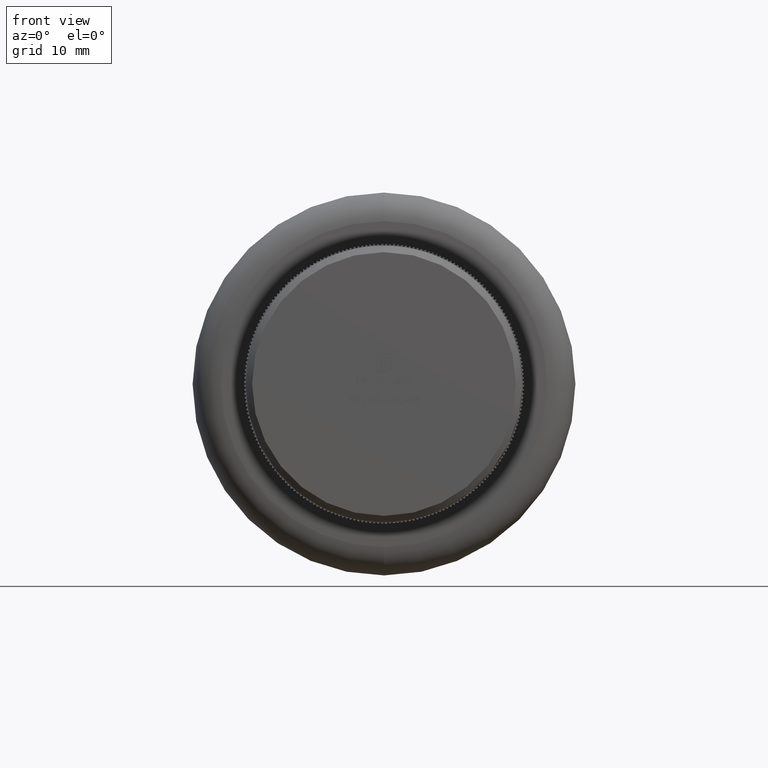
[diagram: clean part render]
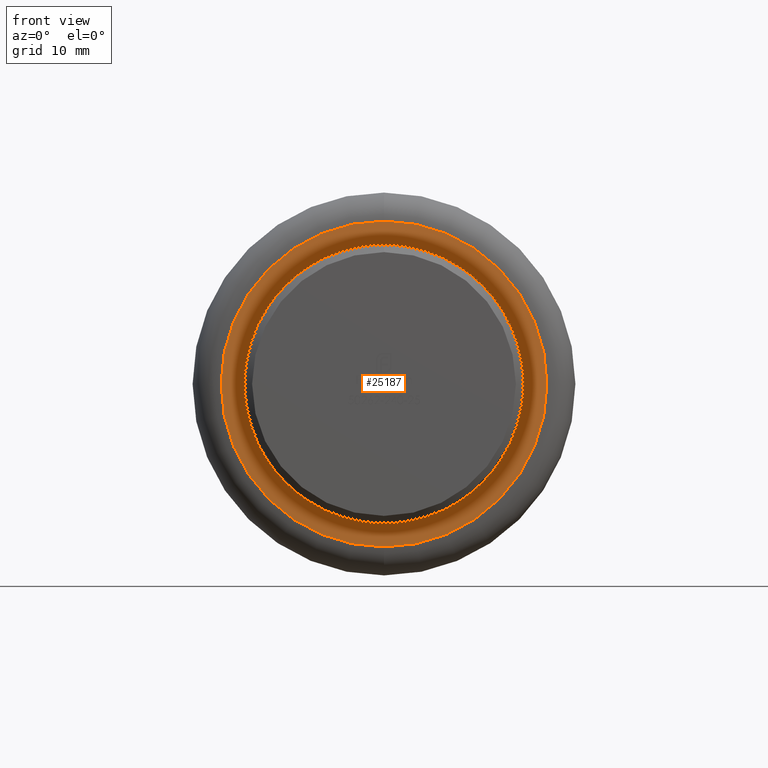
[diagram: same view with one face highlighted and labeled with its STEP entity id]
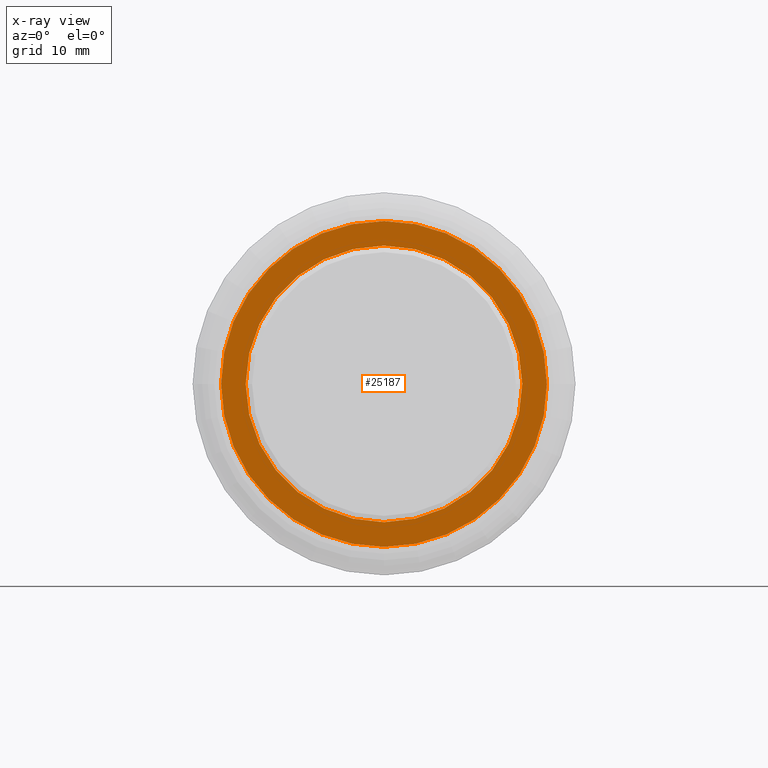
[diagram: x-ray of the same camera — body ghosted, the highlighted face saturated]
A machine part, front view. The second image highlights one B-rep face of the part: STEP entity #25187.
The next image is the same camera in x-ray: the body ghosted, the highlighted face saturated — about 0% of this face is hidden behind the body in this view.
In plain terms, the highlighted planar face has unit normal (0, -1, -0).
Its self-contained STEP definition (entity closure, byte-faithful):
#1648 = DIRECTION ( 'NONE',  ( 0.000000000000000000, -1.000000000000000000, 0.000000000000000000 ) ) ;
#4102 = AXIS2_PLACEMENT_3D ( 'NONE', #4243, #1648, #4631 ) ;
#4243 = CARTESIAN_POINT ( 'NONE',  ( 0.000000000000000000, 0.000000000000000000, 0.000000000000000000 ) ) ;
#4272 = CIRCLE ( 'NONE', #38283, 25.50000000000000000 ) ;
#4631 = DIRECTION ( 'NONE',  ( 0.000000000000000000, 0.000000000000000000, -1.000000000000000000 ) ) ;
#5046 = EDGE_CURVE ( 'NONE', #10919, #38102, #5146, .T. ) ;
#5146 = CIRCLE ( 'NONE', #8353, 25.50000000000000000 ) ;
#8353 = AXIS2_PLACEMENT_3D ( 'NONE', #36671, #12668, #33564 ) ;
#8680 = CARTESIAN_POINT ( 'NONE',  ( 0.000000000000000000, 0.000000000000000000, 21.65000000000000213 ) ) ;
#9742 = EDGE_CURVE ( 'NONE', #38102, #10919, #4272, .T. ) ;
#9939 = CARTESIAN_POINT ( 'NONE',  ( 0.000000000000000000, 0.000000000000000000, -25.50000000000000000 ) ) ;
#10919 = VERTEX_POINT ( 'NONE', #9939 ) ;
#12668 = DIRECTION ( 'NONE',  ( -0.000000000000000000, -1.000000000000000000, -0.000000000000000000 ) ) ;
#14438 = ORIENTED_EDGE ( 'NONE', *, *, #34758, .F. ) ;
#14979 = CARTESIAN_POINT ( 'NONE',  ( 25.50000000000000000, 0.000000000000000000, 0.000000000000000000 ) ) ;
#16271 = CARTESIAN_POINT ( 'NONE',  ( 3.122849337825750617E-15, 0.000000000000000000, 25.50000000000000000 ) ) ;
#16811 = ORIENTED_EDGE ( 'NONE', *, *, #35236, .F. ) ;
#16903 = CIRCLE ( 'NONE', #4102, 21.65000000000000213 ) ;
#17806 = EDGE_LOOP ( 'NONE', ( #16811, #14438 ) ) ;
#17878 = ORIENTED_EDGE ( 'NONE', *, *, #5046, .T. ) ;
#18232 = PLANE ( 'NONE',  #36876 ) ;
#21064 = DIRECTION ( 'NONE',  ( 0.000000000000000000, 0.000000000000000000, -1.000000000000000000 ) ) ;
#21203 = DIRECTION ( 'NONE',  ( 0.000000000000000000, 0.000000000000000000, -1.000000000000000000 ) ) ;
#23109 = FACE_BOUND ( 'NONE', #17806, .T. ) ;
#24978 = FACE_OUTER_BOUND ( 'NONE', #29440, .T. ) ;
#25187 = ADVANCED_FACE ( 'NONE', ( #23109, #24978 ), #18232, .T. ) ;
#25408 = CARTESIAN_POINT ( 'NONE',  ( 0.000000000000000000, 0.000000000000000000, 0.000000000000000000 ) ) ;
#26181 = AXIS2_PLACEMENT_3D ( 'NONE', #25408, #31514, #28920 ) ;
#27056 = DIRECTION ( 'NONE',  ( 0.000000000000000000, -1.000000000000000000, -0.000000000000000000 ) ) ;
#28920 = DIRECTION ( 'NONE',  ( 0.000000000000000000, 0.000000000000000000, -1.000000000000000000 ) ) ;
#29440 = EDGE_LOOP ( 'NONE', ( #17878, #36373 ) ) ;
#29884 = CARTESIAN_POINT ( 'NONE',  ( 0.000000000000000000, 0.000000000000000000, 0.000000000000000000 ) ) ;
#31514 = DIRECTION ( 'NONE',  ( 0.000000000000000000, -1.000000000000000000, 0.000000000000000000 ) ) ;
#32878 = DIRECTION ( 'NONE',  ( -0.000000000000000000, -1.000000000000000000, -0.000000000000000000 ) ) ;
#33564 = DIRECTION ( 'NONE',  ( 0.000000000000000000, 0.000000000000000000, -1.000000000000000000 ) ) ;
#34758 = EDGE_CURVE ( 'NONE', #37322, #37909, #16903, .T. ) ;
#35187 = CARTESIAN_POINT ( 'NONE',  ( 2.651360320154019665E-15, 0.000000000000000000, -21.65000000000000213 ) ) ;
#35236 = EDGE_CURVE ( 'NONE', #37909, #37322, #37087, .T. ) ;
#36373 = ORIENTED_EDGE ( 'NONE', *, *, #9742, .T. ) ;
#36671 = CARTESIAN_POINT ( 'NONE',  ( 0.000000000000000000, 0.000000000000000000, 0.000000000000000000 ) ) ;
#36876 = AXIS2_PLACEMENT_3D ( 'NONE', #14979, #27056, #21203 ) ;
#37087 = CIRCLE ( 'NONE', #26181, 21.65000000000000213 ) ;
#37322 = VERTEX_POINT ( 'NONE', #35187 ) ;
#37909 = VERTEX_POINT ( 'NONE', #8680 ) ;
#38102 = VERTEX_POINT ( 'NONE', #16271 ) ;
#38283 = AXIS2_PLACEMENT_3D ( 'NONE', #29884, #32878, #21064 ) ;